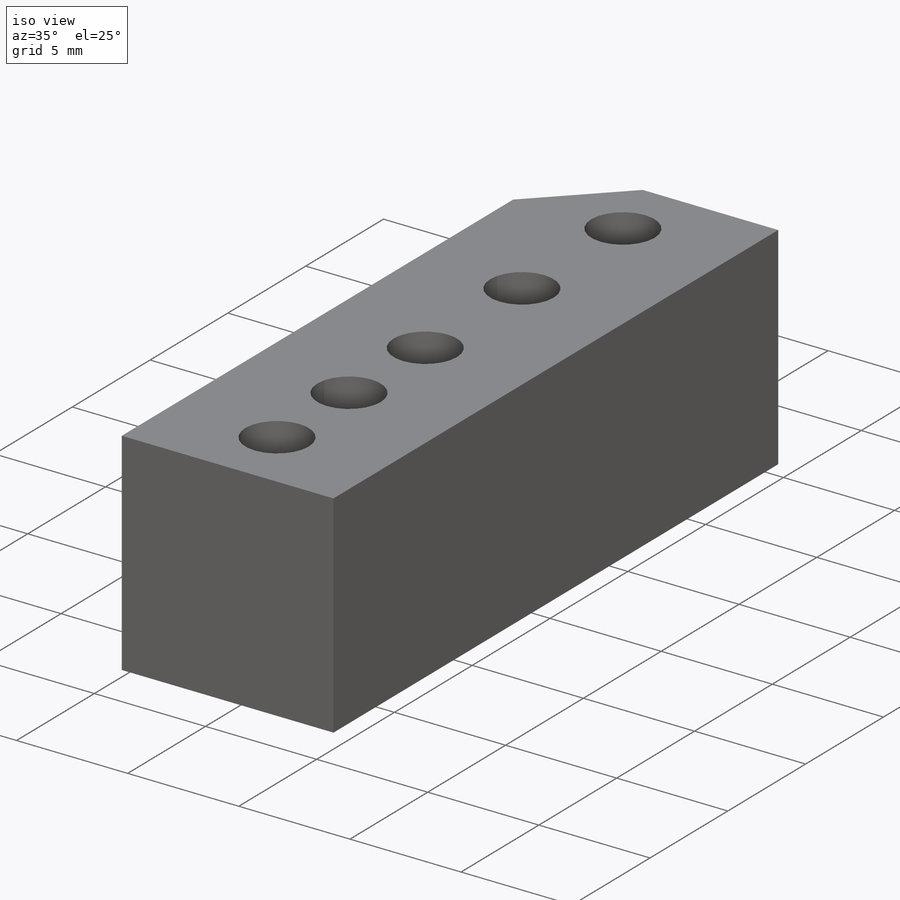
[diagram: iso view]
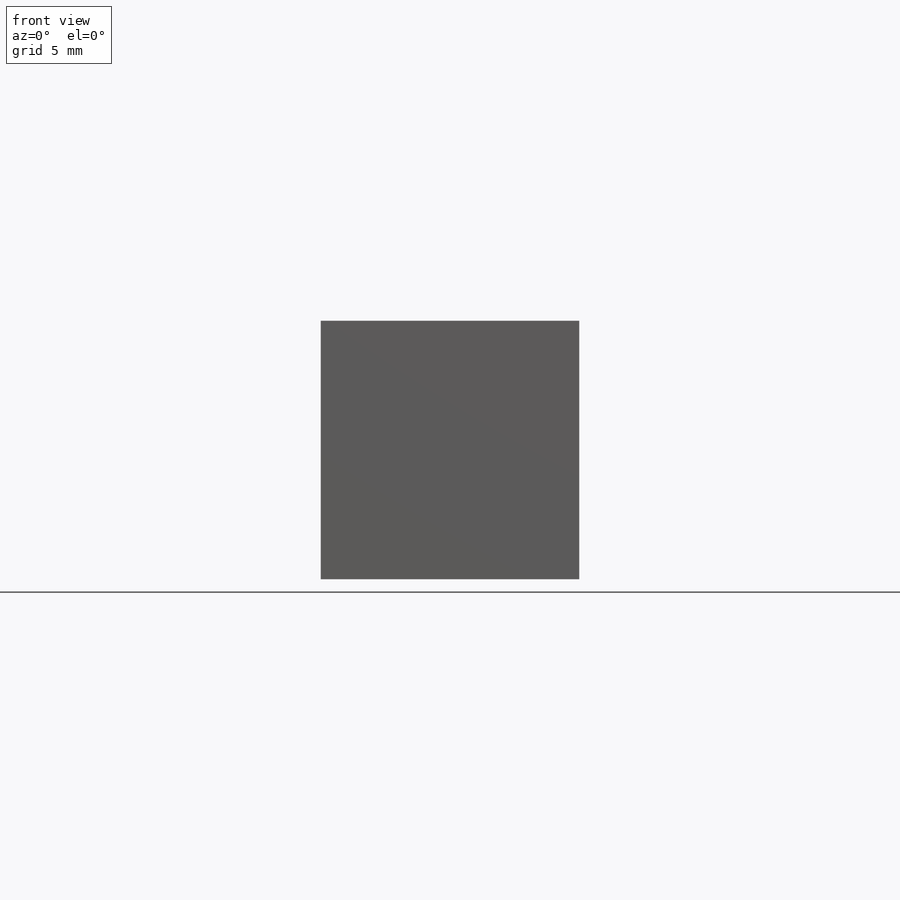
[diagram: front view]
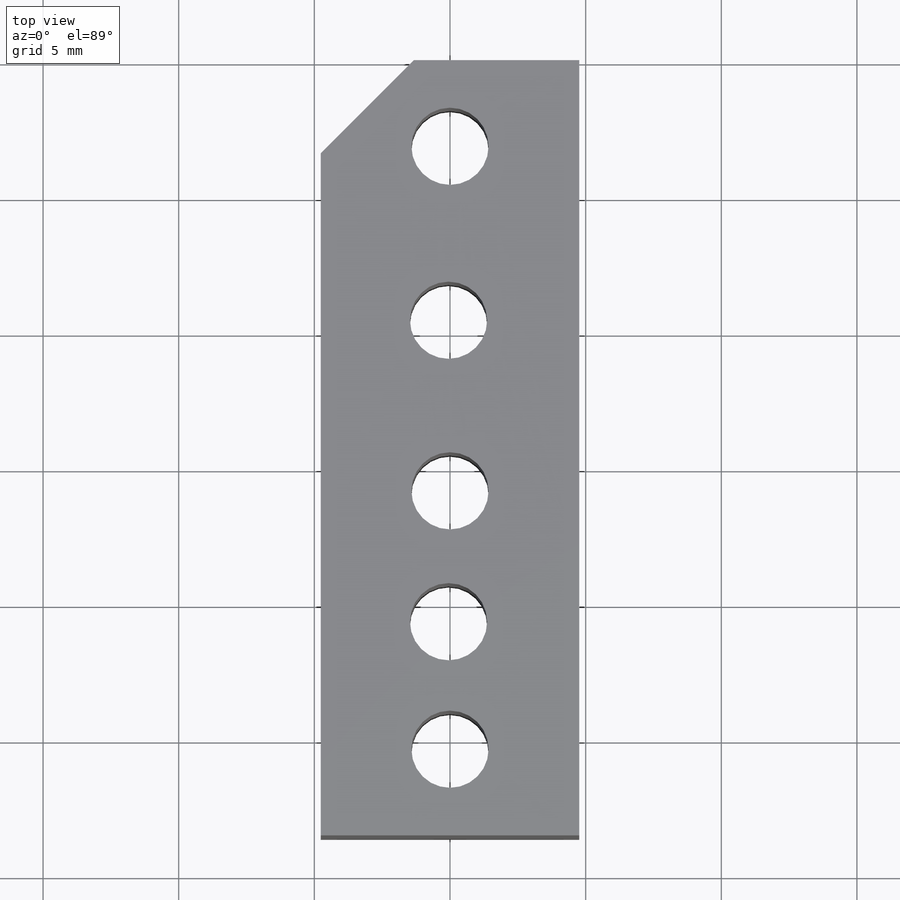
[diagram: top view]
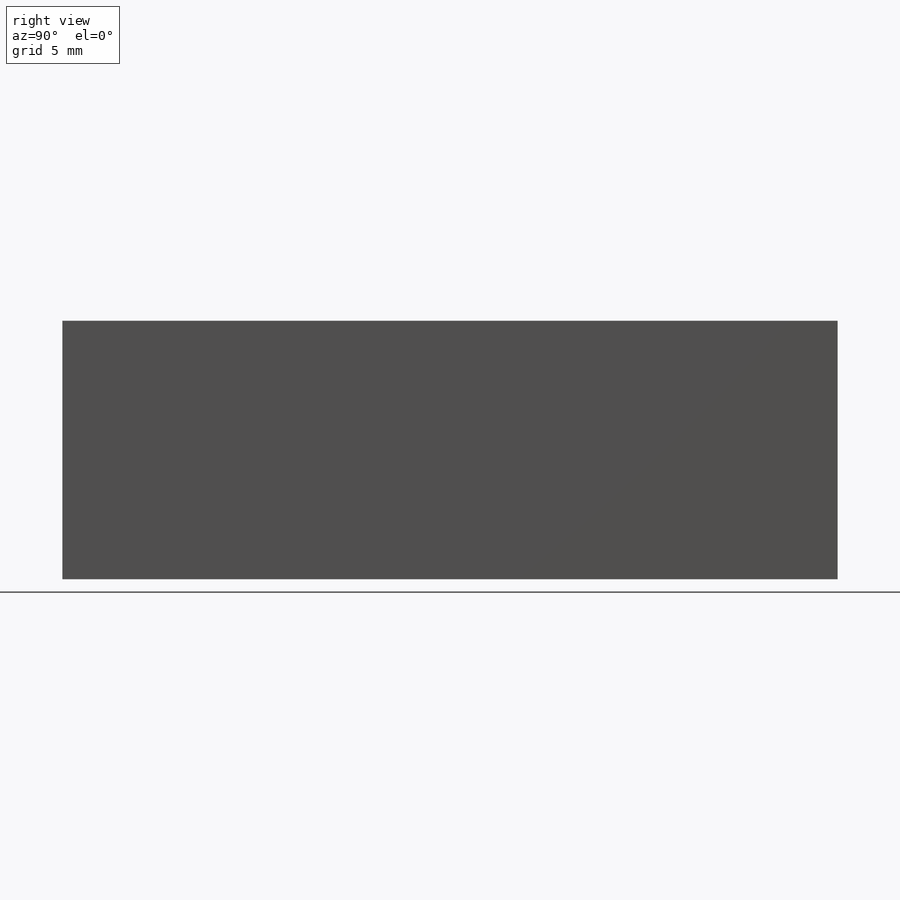
[diagram: right view]
SOLIDWORKS PART (.sldprt)
format: sldprt  version: not decoded by parser v0  size: 216,064 bytes
history: native  units: mm
features: sketch x5, hole x2, material x1, extrude x1, chamfer x1 (+16 scaffold rows collapsed)
feature tree (26):
  scaffold x16  (default folders/planes/origin — collapsed)
  material  "Material <not specified>"
  sketch  "Sketch1"  dims[D1=9.525mm]
  extrude  "Extrude1"  Depth=28.575mm
  hole  "#4-40 Tapped Hole1"  Diameter=2.8448mm Depth=9.525mm
  sketch  "3DSketch1"  dims[c1.D1=12.7mm c1.D2=9.525mm c1.D3=~4.105771mm c1.D5=4.7625mm c1.D4=4.7625mm c2.D5=4.7625mm c2.D3=3.175mm]
  sketch  "Sketch2"  dims[hole-wizard template sketch: 59 standard entries collapsed; hole parameters kept: c18.Thread Major Dia.=2.8448mm c18.Thru Tap Drill Depth=9.525mm]
  hole  "#4-40 Tapped Hole2"  Diameter=2.8448mm Depth=9.525mm
  sketch  "3DSketch2"  dims[D1=24.13mm D2=11.1125mm D3=20.6375mm]
  sketch  "Sketch3"  dims[hole-wizard template sketch: 59 standard entries collapsed; hole parameters kept: c18.Thread Major Dia.=2.8448mm c18.Thru Tap Drill Depth=9.525mm]
  chamfer  "Chamfer1"  Distance=3.429mm Angle=45deg
decode coverage: 9 of 9 modeling features carry decoded parameters
note: ~ marks probable driven/reference dimensions
note: suppression state not decoded; provenance and decode notes live in map.json
